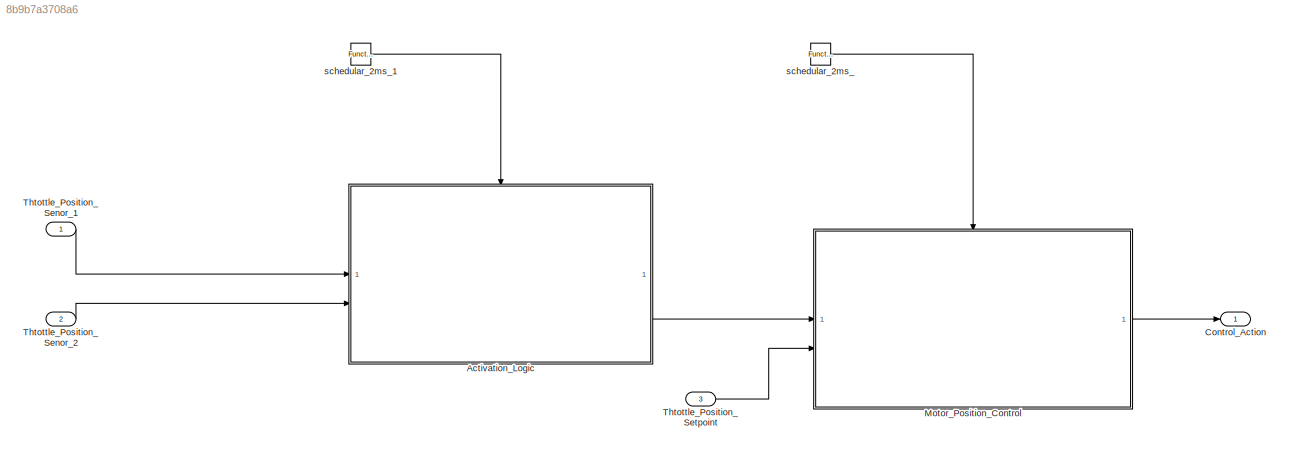
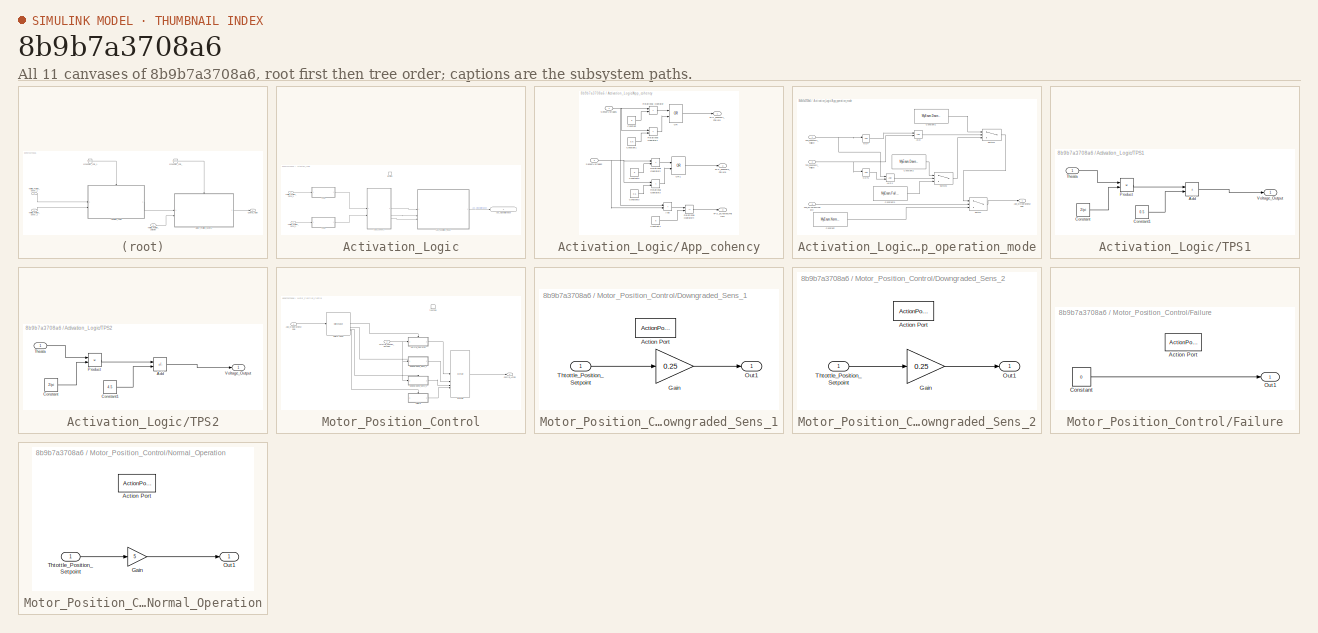
[diagram: thumbnail index - all 11 canvases of the model, root first then tree order]
MODEL slx_8b9b7a3708a6
KIND model
CONFIG AbsTol = auto
CONFIG EnableMultiTasking = off
CONFIG FixedStep = 1e-3
CONFIG MaxStep = auto
CONFIG MinStep = auto
CONFIG RelTol = 1e-3
CONFIG SampleTimeConstraint = Unconstrained
CONFIG SolverName = FixedStepDiscrete
CONFIG StartTime = 0.0
CONFIG StopTime = 9
BLOCK [SubSystem] Activation_Logic
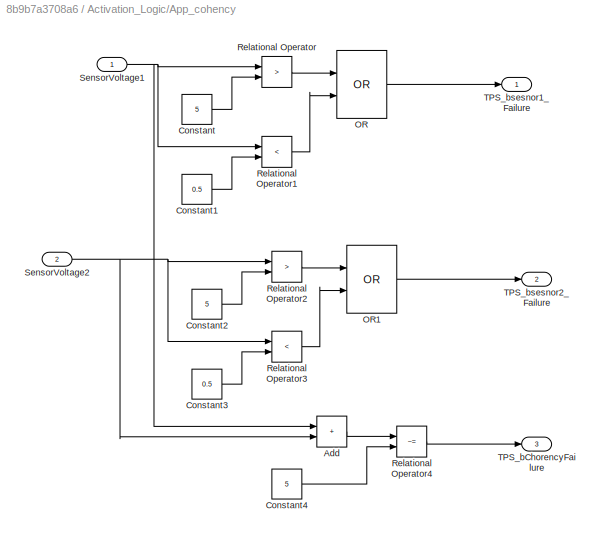
BLOCK [SubSystem] Activation_Logic/App_cohency
BLOCK [Sum] Activation_Logic/App_cohency/Add
  IconShape = rectangular
BLOCK [Constant] Activation_Logic/App_cohency/Constant
  Value = 5
BLOCK [Constant] Activation_Logic/App_cohency/Constant1
  Value = 0.5
BLOCK [Constant] Activation_Logic/App_cohency/Constant2
  Value = 5
BLOCK [Constant] Activation_Logic/App_cohency/Constant3
  Value = 0.5
BLOCK [Constant] Activation_Logic/App_cohency/Constant4
  Value = 5
BLOCK [Logic] Activation_Logic/App_cohency/OR
  AllPortsSameDT = off
  IconShape = distinctive
  Operator = OR
  OutDataTypeStr = boolean
BLOCK [Logic] Activation_Logic/App_cohency/OR1
  AllPortsSameDT = off
  IconShape = distinctive
  Operator = OR
  OutDataTypeStr = boolean
BLOCK [RelationalOperator] Activation_Logic/App_cohency/Relational Operator
  InputSameDT = off
  Operator = >
  OutDataTypeStr = boolean
  RndMeth = Simplest
BLOCK [RelationalOperator] Activation_Logic/App_cohency/Relational Operator1
  InputSameDT = off
  Operator = <
  OutDataTypeStr = boolean
  RndMeth = Simplest
BLOCK [RelationalOperator] Activation_Logic/App_cohency/Relational Operator2
  InputSameDT = off
  Operator = >
  OutDataTypeStr = boolean
  RndMeth = Simplest
BLOCK [RelationalOperator] Activation_Logic/App_cohency/Relational Operator3
  InputSameDT = off
  Operator = <
  OutDataTypeStr = boolean
  RndMeth = Simplest
BLOCK [RelationalOperator] Activation_Logic/App_cohency/Relational Operator4
  InputSameDT = off
  Operator = ~=
  OutDataTypeStr = boolean
  RndMeth = Simplest
BLOCK [Inport] Activation_Logic/App_cohency/SensorVoltage1
BLOCK [Inport] Activation_Logic/App_cohency/SensorVoltage2
  Port = 2
BLOCK [Outport] Activation_Logic/App_cohency/TPS_bChorencyFailure
  Port = 3
BLOCK [Outport] Activation_Logic/App_cohency/TPS_bsesnor1_Failure
BLOCK [Outport] Activation_Logic/App_cohency/TPS_bsesnor2_Failure
  Port = 2
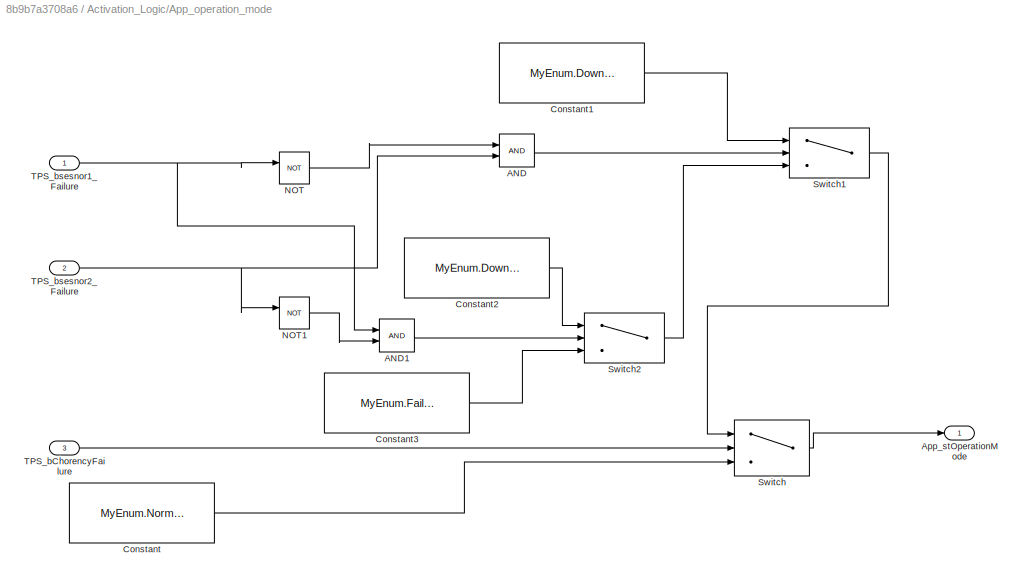
BLOCK [SubSystem] Activation_Logic/App_operation_mode
BLOCK [Logic] Activation_Logic/App_operation_mode/AND
  AllPortsSameDT = off
  OutDataTypeStr = boolean
BLOCK [Logic] Activation_Logic/App_operation_mode/AND1
  AllPortsSameDT = off
  OutDataTypeStr = boolean
BLOCK [Outport] Activation_Logic/App_operation_mode/App_stOperationMode
  OutDataTypeStr = Enum: MyEnum
BLOCK [Constant] Activation_Logic/App_operation_mode/Constant
  Value = MyEnum.Normal
BLOCK [Constant] Activation_Logic/App_operation_mode/Constant1
  Value = MyEnum.DowngradedS1
BLOCK [Constant] Activation_Logic/App_operation_mode/Constant2
  Value = MyEnum.DowngradedS2
BLOCK [Constant] Activation_Logic/App_operation_mode/Constant3
  Value = MyEnum.Failure
BLOCK [Logic] Activation_Logic/App_operation_mode/NOT
  AllPortsSameDT = off
  IconShape = distinctive
  Operator = NOT
  OutDataTypeStr = boolean
BLOCK [Logic] Activation_Logic/App_operation_mode/NOT1
  AllPortsSameDT = off
  IconShape = distinctive
  Operator = NOT
  OutDataTypeStr = boolean
BLOCK [Switch] Activation_Logic/App_operation_mode/Switch
  Criteria = u2 ~= 0
  InputSameDT = off
  SaturateOnIntegerOverflow = off
BLOCK [Switch] Activation_Logic/App_operation_mode/Switch1
  Criteria = u2 ~= 0
  InputSameDT = off
  SaturateOnIntegerOverflow = off
BLOCK [Switch] Activation_Logic/App_operation_mode/Switch2
  Criteria = u2 ~= 0
  InputSameDT = off
  SaturateOnIntegerOverflow = off
BLOCK [Inport] Activation_Logic/App_operation_mode/TPS_bChorencyFailure
  Port = 3
BLOCK [Inport] Activation_Logic/App_operation_mode/TPS_bsesnor1_Failure
BLOCK [Inport] Activation_Logic/App_operation_mode/TPS_bsesnor2_Failure
  Port = 2
BLOCK [Outport] Activation_Logic/App_stOperationMode
  IconDisplay = Signal name
BLOCK [SubSystem] Activation_Logic/TPS1
BLOCK [Sum] Activation_Logic/TPS1/Add
  IconShape = rectangular
BLOCK [Constant] Activation_Logic/TPS1/Constant
  Value = 2/pi
BLOCK [Constant] Activation_Logic/TPS1/Constant1
  Value = 0.5
BLOCK [Product] Activation_Logic/TPS1/Product
BLOCK [Inport] Activation_Logic/TPS1/Theata
BLOCK [Outport] Activation_Logic/TPS1/Voltage_Output
BLOCK [SubSystem] Activation_Logic/TPS2
BLOCK [Sum] Activation_Logic/TPS2/Add
  IconShape = rectangular
  Inputs = -+
BLOCK [Constant] Activation_Logic/TPS2/Constant
  Value = 2/pi
BLOCK [Constant] Activation_Logic/TPS2/Constant1
  Value = 4.5
BLOCK [Product] Activation_Logic/TPS2/Product
BLOCK [Inport] Activation_Logic/TPS2/Theata
BLOCK [Outport] Activation_Logic/TPS2/Voltage_Output
BLOCK [Inport] Activation_Logic/Thtottle_Position_Senor_1
BLOCK [Inport] Activation_Logic/Thtottle_Position_Senor_2
  Port = 2
BLOCK [TriggerPort] Activation_Logic/function
  StatesWhenEnabling = held
  TriggerType = function-call
  VariantControl = (inherit)
BLOCK [Outport] Control_Action
BLOCK [SubSystem] Motor_Position_Control
BLOCK [Inport] Motor_Position_Control/App_stOperationMode
BLOCK [Outport] Motor_Position_Control/Control_Action
BLOCK [SubSystem] Motor_Position_Control/Downgraded_Sens_1
  TreatAsAtomicUnit = on
BLOCK [ActionPort] Motor_Position_Control/Downgraded_Sens_1/Action Port
  ActionPortLabel = case [ DowngradedS1 ]:
BLOCK [Gain] Motor_Position_Control/Downgraded_Sens_1/Gain
  Gain = 0.25
BLOCK [Outport] Motor_Position_Control/Downgraded_Sens_1/Out1
BLOCK [Inport] Motor_Position_Control/Downgraded_Sens_1/Thtottle_Position_Setpoint
BLOCK [SubSystem] Motor_Position_Control/Downgraded_Sens_2
  TreatAsAtomicUnit = on
BLOCK [ActionPort] Motor_Position_Control/Downgraded_Sens_2/Action Port
  ActionPortLabel = case [ DowngradedS2 ]:
BLOCK [Gain] Motor_Position_Control/Downgraded_Sens_2/Gain
  Gain = 0.25
BLOCK [Outport] Motor_Position_Control/Downgraded_Sens_2/Out1
BLOCK [Inport] Motor_Position_Control/Downgraded_Sens_2/Thtottle_Position_Setpoint
BLOCK [SubSystem] Motor_Position_Control/Failure
  TreatAsAtomicUnit = on
BLOCK [ActionPort] Motor_Position_Control/Failure/Action Port
  ActionPortLabel = case [ Failure ]:
BLOCK [Constant] Motor_Position_Control/Failure/Constant
  Value = 0
BLOCK [Outport] Motor_Position_Control/Failure/Out1
BLOCK [Merge] Motor_Position_Control/Merge
  Inputs = 4
BLOCK [SubSystem] Motor_Position_Control/Normal_Operation
  TreatAsAtomicUnit = on
BLOCK [ActionPort] Motor_Position_Control/Normal_Operation/Action Port
  ActionPortLabel = case [ Normal ]:
BLOCK [Gain] Motor_Position_Control/Normal_Operation/Gain
  Gain = 5
BLOCK [Outport] Motor_Position_Control/Normal_Operation/Out1
BLOCK [Inport] Motor_Position_Control/Normal_Operation/Thtottle_Position_Setpoint
BLOCK [SwitchCase] Motor_Position_Control/Switch Case
  CaseConditions = {MyEnum.Normal,MyEnum.DowngradedS1,MyEnum.DowngradedS2,MyEnum.Failure}
  ShowDefaultCase = off
BLOCK [Inport] Motor_Position_Control/Thtottle_Position_Setpoint
  Port = 2
BLOCK [TriggerPort] Motor_Position_Control/function
  StatesWhenEnabling = held
  TriggerType = function-call
  VariantControl = (inherit)
BLOCK [Inport] Thtottle_Position_Senor_1
BLOCK [Inport] Thtottle_Position_Senor_2
  Port = 2
BLOCK [Inport] Thtottle_Position_Setpoint
  Port = 3
BLOCK [Reference] schedular_2ms_  REF=simulink/Ports &
Subsystems/Function-Call
Generator
  SourceBlock = simulink/Ports &\nSubsystems/Function-Call\nGenerator
  SourceType = Function-Call Generator
BLOCK [Reference] schedular_2ms_1  REF=simulink/Ports &
Subsystems/Function-Call
Generator
  SourceBlock = simulink/Ports &\nSubsystems/Function-Call\nGenerator
  SourceType = Function-Call Generator
LINE Activation_Logic/App_cohency/Add:1 -> Activation_Logic/App_cohency/Relational Operator4:1
LINE Activation_Logic/App_cohency/Constant1:1 -> Activation_Logic/App_cohency/Relational Operator1:2
LINE Activation_Logic/App_cohency/Constant2:1 -> Activation_Logic/App_cohency/Relational Operator2:2
LINE Activation_Logic/App_cohency/Constant3:1 -> Activation_Logic/App_cohency/Relational Operator3:2
LINE Activation_Logic/App_cohency/Constant4:1 -> Activation_Logic/App_cohency/Relational Operator4:2
LINE Activation_Logic/App_cohency/Constant:1 -> Activation_Logic/App_cohency/Relational Operator:2
LINE Activation_Logic/App_cohency/OR1:1 -> Activation_Logic/App_cohency/TPS_bsesnor2_Failure:1
LINE Activation_Logic/App_cohency/OR:1 -> Activation_Logic/App_cohency/TPS_bsesnor1_Failure:1
LINE Activation_Logic/App_cohency/Relational Operator1:1 -> Activation_Logic/App_cohency/OR:2
LINE Activation_Logic/App_cohency/Relational Operator2:1 -> Activation_Logic/App_cohency/OR1:1
LINE Activation_Logic/App_cohency/Relational Operator3:1 -> Activation_Logic/App_cohency/OR1:2
LINE Activation_Logic/App_cohency/Relational Operator4:1 -> Activation_Logic/App_cohency/TPS_bChorencyFailure:1
LINE Activation_Logic/App_cohency/Relational Operator:1 -> Activation_Logic/App_cohency/OR:1
NET Activation_Logic/App_cohency/SensorVoltage1:1 -> Activation_Logic/App_cohency/Add:1, Activation_Logic/App_cohency/Relational Operator1:1, Activation_Logic/App_cohency/Relational Operator:1
NET Activation_Logic/App_cohency/SensorVoltage2:1 -> Activation_Logic/App_cohency/Add:2, Activation_Logic/App_cohency/Relational Operator2:1, Activation_Logic/App_cohency/Relational Operator3:1
LINE Activation_Logic/App_cohency:1 -> Activation_Logic/App_operation_mode:1
LINE Activation_Logic/App_cohency:2 -> Activation_Logic/App_operation_mode:2
LINE Activation_Logic/App_cohency:3 -> Activation_Logic/App_operation_mode:3
LINE Activation_Logic/App_operation_mode/AND1:1 -> Activation_Logic/App_operation_mode/Switch2:2
LINE Activation_Logic/App_operation_mode/AND:1 -> Activation_Logic/App_operation_mode/Switch1:2
LINE Activation_Logic/App_operation_mode/Constant1:1 -> Activation_Logic/App_operation_mode/Switch1:1
LINE Activation_Logic/App_operation_mode/Constant2:1 -> Activation_Logic/App_operation_mode/Switch2:1
LINE Activation_Logic/App_operation_mode/Constant3:1 -> Activation_Logic/App_operation_mode/Switch2:3
LINE Activation_Logic/App_operation_mode/Constant:1 -> Activation_Logic/App_operation_mode/Switch:3
LINE Activation_Logic/App_operation_mode/NOT1:1 -> Activation_Logic/App_operation_mode/AND1:2
LINE Activation_Logic/App_operation_mode/NOT:1 -> Activation_Logic/App_operation_mode/AND:1
LINE Activation_Logic/App_operation_mode/Switch1:1 -> Activation_Logic/App_operation_mode/Switch:1
LINE Activation_Logic/App_operation_mode/Switch2:1 -> Activation_Logic/App_operation_mode/Switch1:3
LINE Activation_Logic/App_operation_mode/Switch:1 -> Activation_Logic/App_operation_mode/App_stOperationMode:1
LINE Activation_Logic/App_operation_mode/TPS_bChorencyFailure:1 -> Activation_Logic/App_operation_mode/Switch:2
NET Activation_Logic/App_operation_mode/TPS_bsesnor1_Failure:1 -> Activation_Logic/App_operation_mode/AND1:1, Activation_Logic/App_operation_mode/NOT:1
NET Activation_Logic/App_operation_mode/TPS_bsesnor2_Failure:1 -> Activation_Logic/App_operation_mode/AND:2, Activation_Logic/App_operation_mode/NOT1:1
LINE Activation_Logic/App_operation_mode:1 -> Activation_Logic/App_stOperationMode:1
LINE Activation_Logic/TPS1/Add:1 -> Activation_Logic/TPS1/Voltage_Output:1
LINE Activation_Logic/TPS1/Constant1:1 -> Activation_Logic/TPS1/Add:2
LINE Activation_Logic/TPS1/Constant:1 -> Activation_Logic/TPS1/Product:2
LINE Activation_Logic/TPS1/Product:1 -> Activation_Logic/TPS1/Add:1
LINE Activation_Logic/TPS1/Theata:1 -> Activation_Logic/TPS1/Product:1
LINE Activation_Logic/TPS1:1 -> Activation_Logic/App_cohency:1
LINE Activation_Logic/TPS2/Add:1 -> Activation_Logic/TPS2/Voltage_Output:1
LINE Activation_Logic/TPS2/Constant1:1 -> Activation_Logic/TPS2/Add:2
LINE Activation_Logic/TPS2/Constant:1 -> Activation_Logic/TPS2/Product:2
LINE Activation_Logic/TPS2/Product:1 -> Activation_Logic/TPS2/Add:1
LINE Activation_Logic/TPS2/Theata:1 -> Activation_Logic/TPS2/Product:1
LINE Activation_Logic/TPS2:1 -> Activation_Logic/App_cohency:2
LINE Activation_Logic/Thtottle_Position_Senor_1:1 -> Activation_Logic/TPS1:1
LINE Activation_Logic/Thtottle_Position_Senor_2:1 -> Activation_Logic/TPS2:1
LINE Activation_Logic:1 -> Motor_Position_Control:1
LINE Motor_Position_Control/App_stOperationMode:1 -> Motor_Position_Control/Switch Case:1
LINE Motor_Position_Control/Downgraded_Sens_1/Gain:1 -> Motor_Position_Control/Downgraded_Sens_1/Out1:1
LINE Motor_Position_Control/Downgraded_Sens_1/Thtottle_Position_Setpoint:1 -> Motor_Position_Control/Downgraded_Sens_1/Gain:1
LINE Motor_Position_Control/Downgraded_Sens_1:1 -> Motor_Position_Control/Merge:2
LINE Motor_Position_Control/Downgraded_Sens_2/Gain:1 -> Motor_Position_Control/Downgraded_Sens_2/Out1:1
LINE Motor_Position_Control/Downgraded_Sens_2/Thtottle_Position_Setpoint:1 -> Motor_Position_Control/Downgraded_Sens_2/Gain:1
LINE Motor_Position_Control/Downgraded_Sens_2:1 -> Motor_Position_Control/Merge:3
LINE Motor_Position_Control/Failure/Constant:1 -> Motor_Position_Control/Failure/Out1:1
LINE Motor_Position_Control/Failure:1 -> Motor_Position_Control/Merge:4
LINE Motor_Position_Control/Merge:1 -> Motor_Position_Control/Control_Action:1
LINE Motor_Position_Control/Normal_Operation/Gain:1 -> Motor_Position_Control/Normal_Operation/Out1:1
LINE Motor_Position_Control/Normal_Operation/Thtottle_Position_Setpoint:1 -> Motor_Position_Control/Normal_Operation/Gain:1
LINE Motor_Position_Control/Normal_Operation:1 -> Motor_Position_Control/Merge:1
LINE Motor_Position_Control/Switch Case:1 -> Motor_Position_Control/Normal_Operation:ifaction
LINE Motor_Position_Control/Switch Case:2 -> Motor_Position_Control/Downgraded_Sens_1:ifaction
LINE Motor_Position_Control/Switch Case:3 -> Motor_Position_Control/Downgraded_Sens_2:ifaction
LINE Motor_Position_Control/Switch Case:4 -> Motor_Position_Control/Failure:ifaction
NET Motor_Position_Control/Thtottle_Position_Setpoint:1 -> Motor_Position_Control/Downgraded_Sens_1:1, Motor_Position_Control/Downgraded_Sens_2:1, Motor_Position_Control/Normal_Operation:1
LINE Motor_Position_Control:1 -> Control_Action:1
LINE Thtottle_Position_Senor_1:1 -> Activation_Logic:1
LINE Thtottle_Position_Senor_2:1 -> Activation_Logic:2
LINE Thtottle_Position_Setpoint:1 -> Motor_Position_Control:2
LINE schedular_2ms_1:1 -> Activation_Logic:trigger
LINE schedular_2ms_:1 -> Motor_Position_Control:trigger
note: NET lines group one-source signal fan-out (src -> all destinations, sorted); 1:1 wires keep LINE
